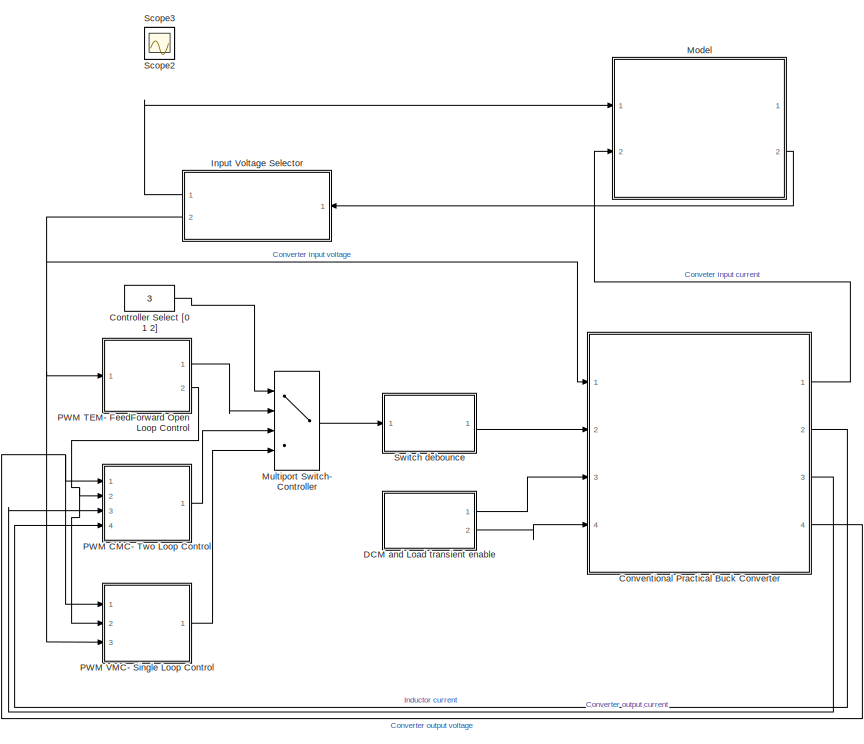
[diagram: root canvas - part 1/3, center side, full height]
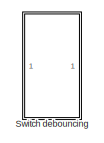
[diagram: root canvas - part 2/3, bottom right region]
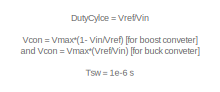
[diagram: root canvas - part 3/3, bottom left region]
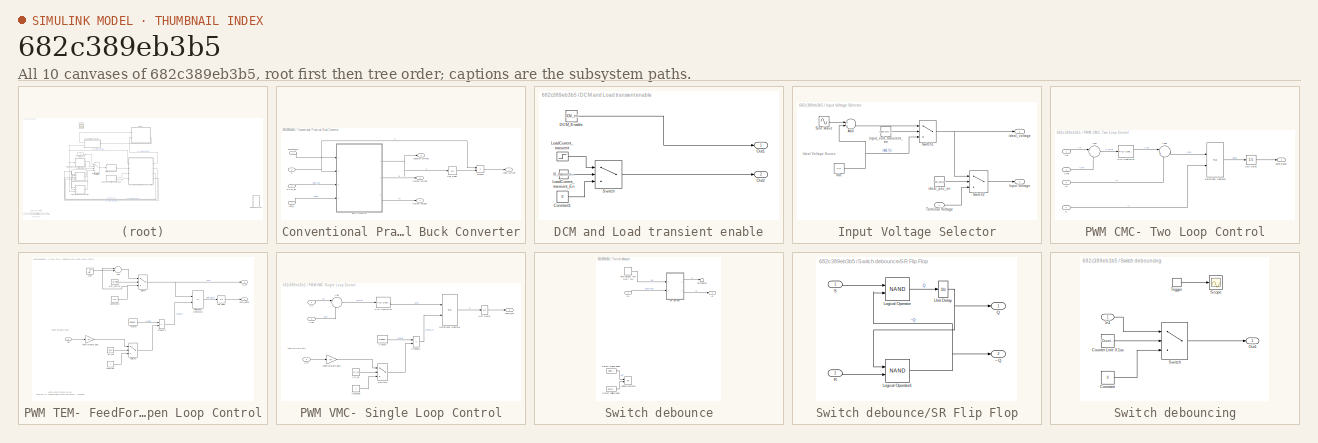
[diagram: thumbnail index - all 10 canvases of the model, root first then tree order]
MODEL slx_682c389eb3b5
KIND model
CONFIG AbsTol = auto
CONFIG EnableMultiTasking = off
CONFIG FixedStep = Ts
CONFIG InitFcn = init_practical_voltage_source;\ninit_conventional_buck_lec14;
CONFIG MaxStep = auto
CONFIG MinStep = auto
CONFIG PostLoadFcn = , if any(exist('dsrtsu_mdlpostloadfcn', 'file') == [2, 3, 6]), try dsrtsu_mdlpostloadfcn('Execute', bdroot); catch fprintf('Error in PostLoadFcn (dsrtsu_mdlpostloadfcn) for model "%s":\n %s\n', bdroot, lasterr); end, end, \ninit_practical_voltage_source;\ninit_conventional_buck_lec14;\n
CONFIG RelTol = 1e-3
CONFIG SampleTimeConstraint = Unconstrained
CONFIG Solver = FixedStepAuto
CONFIG SolverName = FixedStepAuto
CONFIG StartTime = 0.0
CONFIG StopTime = 2e-3
BLOCK [Constant] Controller Select [0 1 2]
  Value = 3
BLOCK [SubSystem] Conventional Practical Buck Converter
  Ports = [4, 4]
  RequestExecContextInheritance = off
  Variant = off
BLOCK [Inport] Conventional Practical Buck Converter/Add_iL
  IconDisplay = Port number
  Port = 4
BLOCK [ModelReference] Conventional Practical Buck Converter/Buck Converter
  ModelNameDialog = convetional_buck.slx
  ModelReferenceVersion = 1.37
  Ports = [4, 3]
  Variant = off
BLOCK [Inport] Conventional Practical Buck Converter/DCM_En
  IconDisplay = Port number
  Port = 3
BLOCK [Outport] Conventional Practical Buck Converter/Inductor current
  IconDisplay = Port number
  Port = 2
BLOCK [Outport] Conventional Practical Buck Converter/Input current
  IconDisplay = Port number
BLOCK [Outport] Conventional Practical Buck Converter/Output current
  IconDisplay = Port number
  Port = 3
BLOCK [Outport] Conventional Practical Buck Converter/Output voltage
  IconDisplay = Port number
  Port = 4
BLOCK [Product] Conventional Practical Buck Converter/Product
  InputSameDT = off
  OutDataTypeStr = Inherit: Inherit via internal rule
  Ports = [2, 1]
  RndMeth = Floor
  SaturateOnIntegerOverflow = off
BLOCK [UnitDelay] Conventional Practical Buck Converter/Unit Delay
  InputProcessing = Elements as channels (sample based)
  SampleTime = -1
BLOCK [Inport] Conventional Practical Buck Converter/practical_Vs
  IconDisplay = Port number
BLOCK [Inport] Conventional Practical Buck Converter/q
  IconDisplay = Port number
  Port = 2
BLOCK [SubSystem] DCM and Load transient enable
  Ports = [0, 2]
  RequestExecContextInheritance = off
  Variant = off
BLOCK [Constant] DCM and Load transient enable/Constant1
  Value = 0
BLOCK [Constant] DCM and Load transient enable/DCM_Enable
  OutDataTypeStr = boolean
  Value = DCM_en
BLOCK [Step] DCM and Load transient enable/LoadCurrent_transient
  After = 20
  Time = 1.0e-3
BLOCK [Constant] DCM and Load transient enable/LoadCurrent_transient_En
  OutDataTypeStr = boolean
  Value = I0_transient_en
BLOCK [Outport] DCM and Load transient enable/Out1
  IconDisplay = Port number
BLOCK [Outport] DCM and Load transient enable/Out2
  IconDisplay = Port number
  Port = 2
BLOCK [Switch] DCM and Load transient enable/Switch
  Criteria = u2 > Threshold
  InputSameDT = off
  SaturateOnIntegerOverflow = off
BLOCK [SubSystem] Input Voltage Selector
  Ports = [1, 2]
  RequestExecContextInheritance = off
  Variant = off
BLOCK [Sum] Input Voltage Selector/Add
  InputSameDT = off
  OutDataTypeStr = Inherit: Inherit via internal rule
  Ports = [2, 1]
  SaturateOnIntegerOverflow = off
BLOCK [Outport] Input Voltage Selector/Input Voltage
  IconDisplay = Port number
  Port = 2
BLOCK [Sin] Input Voltage Selector/Sine Wave
  Amplitude = 2
  Frequency = 2*pi*1e3
  Ports = [0, 1]
  SampleTime = 0
BLOCK [Switch] Input Voltage Selector/Switch1
  Criteria = u2 > Threshold
  InputSameDT = off
  SaturateOnIntegerOverflow = off
  Threshold = 0.5
BLOCK [Switch] Input Voltage Selector/Switch2
  Criteria = u2 > Threshold
  InputSameDT = off
  SaturateOnIntegerOverflow = off
  Threshold = 0.5
BLOCK [Inport] Input Voltage Selector/Terminal Voltage
  IconDisplay = Port number
BLOCK [Constant] Input Voltage Selector/Vdc
  Value = Vin
BLOCK [Constant] Input Voltage Selector/ideal_psu_en
  Value = ideal_psu_en
BLOCK [Outport] Input Voltage Selector/ideal_voltage
  IconDisplay = Port number
BLOCK [Constant] Input Voltage Selector/input_volt_transient_en
  Value = input_volt_trans_en
BLOCK [ModelReference] Model
  ModelNameDialog = practical_voltage_source.slx
  ModelReferenceVersion = 1.13
  Ports = [2, 2]
  Variant = off
BLOCK [MultiPortSwitch] Multiport Switch- Controller
  InputSameDT = off
  Ports = [4, 1]
  SaturateOnIntegerOverflow = off
BLOCK [SubSystem] PWM CMC- Two Loop Control
  Ports = [4, 1]
  RequestExecContextInheritance = off
  Variant = off
BLOCK [Sum] PWM CMC- Two Loop Control/Add
  IconShape = round
  InputSameDT = off
  Inputs = |-+
  OutDataTypeStr = Inherit: Inherit via internal rule
  Ports = [2, 1]
  SaturateOnIntegerOverflow = off
BLOCK [Sum] PWM CMC- Two Loop Control/Add1
  IconShape = round
  InputSameDT = off
  Inputs = |++
  OutDataTypeStr = Inherit: Inherit via internal rule
  Ports = [2, 1]
  SaturateOnIntegerOverflow = off
BLOCK [Inport] PWM CMC- Two Loop Control/I0
  IconDisplay = Port number
  Port = 3
BLOCK [Inport] PWM CMC- Two Loop Control/IL
  IconDisplay = Port number
  Port = 4
BLOCK [Reference] PWM CMC- Two Loop Control/PID Controller  REF=simulink/Continuous/PID Controller
  Ports = [1, 1]
  SourceBlock = simulink/Continuous/PID Controller
  SourceProductBaseCode = SL
  SourceProductName = Simulink
  SourceType = PID 1dof
BLOCK [RelationalOperator] PWM CMC- Two Loop Control/Relational Operator
  InputSameDT = off
  Operator = <=
  OutDataTypeStr = boolean
  Ports = [2, 1]
  RndMeth = Simplest
BLOCK [UnitDelay] PWM CMC- Two Loop Control/Unit Delay
  InputProcessing = Elements as channels (sample based)
  SampleTime = -1
BLOCK [Inport] PWM CMC- Two Loop Control/V0
  IconDisplay = Port number
BLOCK [Inport] PWM CMC- Two Loop Control/Vref
  IconDisplay = Port number
  Port = 2
BLOCK [Outport] PWM CMC- Two Loop Control/gate_signal
  IconDisplay = Port number
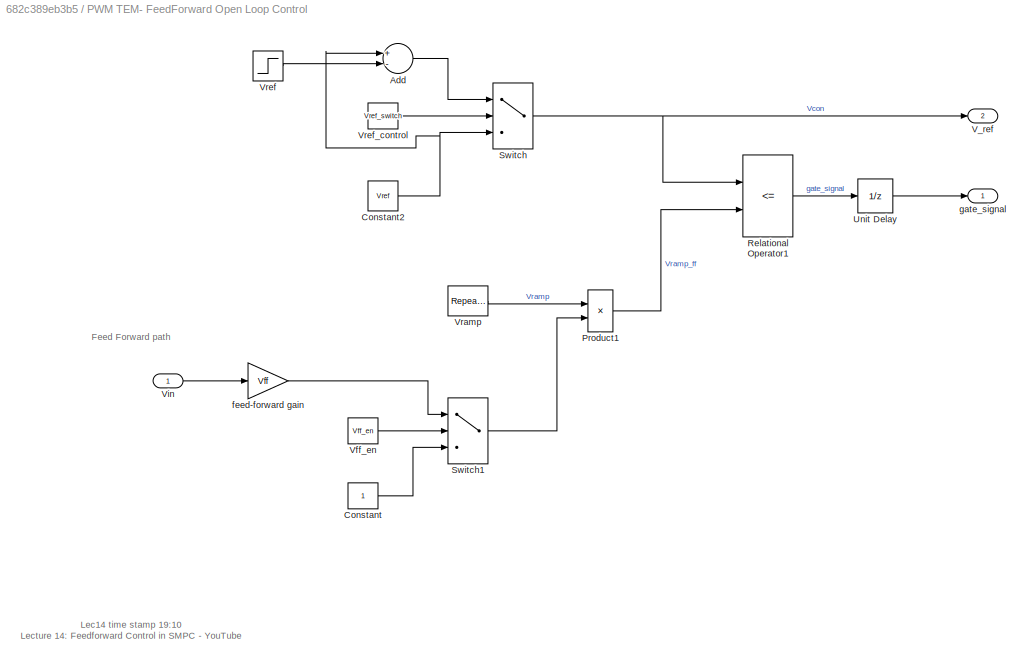
BLOCK [SubSystem] PWM TEM- FeedForward Open Loop Control
  Ports = [1, 2]
  RequestExecContextInheritance = off
  Variant = off
BLOCK [Sum] PWM TEM- FeedForward Open Loop Control/Add
  InputSameDT = off
  Inputs = +-
  OutDataTypeStr = Inherit: Inherit via internal rule
  Ports = [2, 1]
  SaturateOnIntegerOverflow = off
BLOCK [Constant] PWM TEM- FeedForward Open Loop Control/Constant
BLOCK [Constant] PWM TEM- FeedForward Open Loop Control/Constant2
  Value = Vref
BLOCK [Product] PWM TEM- FeedForward Open Loop Control/Product1
  InputSameDT = off
  OutDataTypeStr = Inherit: Inherit via internal rule
  Ports = [2, 1]
  RndMeth = Floor
  SaturateOnIntegerOverflow = off
BLOCK [RelationalOperator] PWM TEM- FeedForward Open Loop Control/Relational Operator1
  InputSameDT = off
  Operator = <=
  OutDataTypeStr = boolean
  Ports = [2, 1]
  RndMeth = Simplest
BLOCK [Switch] PWM TEM- FeedForward Open Loop Control/Switch
  Criteria = u2 > Threshold
  InputSameDT = off
  SaturateOnIntegerOverflow = off
BLOCK [Switch] PWM TEM- FeedForward Open Loop Control/Switch1
  Criteria = u2 > Threshold
  InputSameDT = off
  SaturateOnIntegerOverflow = off
BLOCK [UnitDelay] PWM TEM- FeedForward Open Loop Control/Unit Delay
  InputProcessing = Elements as channels (sample based)
  SampleTime = -1
BLOCK [Outport] PWM TEM- FeedForward Open Loop Control/V_ref
  IconDisplay = Port number
  Port = 2
BLOCK [Constant] PWM TEM- FeedForward Open Loop Control/Vff_en
  Value = Vff_en
BLOCK [Inport] PWM TEM- FeedForward Open Loop Control/Vin
  IconDisplay = Port number
BLOCK [Reference] PWM TEM- FeedForward Open Loop Control/Vramp  REF=simulink/Sources/Repeating
Sequence
  Ports = [0, 1]
  SourceBlock = simulink/Sources/Repeating\nSequence
  SourceProductBaseCode = SL
  SourceProductName = Simulink
  SourceType = Repeating table
BLOCK [Step] PWM TEM- FeedForward Open Loop Control/Vref
  After = 0.5
  Time = 1.25e-3
BLOCK [Constant] PWM TEM- FeedForward Open Loop Control/Vref_control
  Value = Vref_switch
BLOCK [Gain] PWM TEM- FeedForward Open Loop Control/feed-forward gain
  Gain = Vff
  OutDataTypeStr = Inherit: Inherit via internal rule
  ParamDataTypeStr = Inherit: Inherit via internal rule
  SaturateOnIntegerOverflow = off
BLOCK [Outport] PWM TEM- FeedForward Open Loop Control/gate_signal
  IconDisplay = Port number
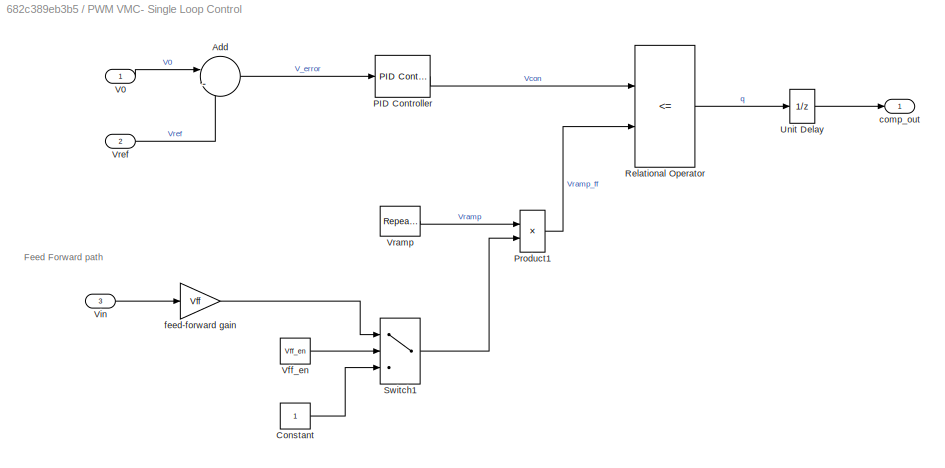
BLOCK [SubSystem] PWM VMC- Single Loop Control
  Ports = [3, 1]
  RequestExecContextInheritance = off
  Variant = off
BLOCK [Sum] PWM VMC- Single Loop Control/Add
  IconShape = round
  InputSameDT = off
  Inputs = |-+
  OutDataTypeStr = Inherit: Inherit via internal rule
  Ports = [2, 1]
  SaturateOnIntegerOverflow = off
BLOCK [Constant] PWM VMC- Single Loop Control/Constant
BLOCK [Reference] PWM VMC- Single Loop Control/PID Controller  REF=simulink/Continuous/PID Controller
  Ports = [1, 1]
  SourceBlock = simulink/Continuous/PID Controller
  SourceProductBaseCode = SL
  SourceProductName = Simulink
  SourceType = PID 1dof
BLOCK [Product] PWM VMC- Single Loop Control/Product1
  InputSameDT = off
  OutDataTypeStr = Inherit: Inherit via internal rule
  Ports = [2, 1]
  RndMeth = Floor
  SaturateOnIntegerOverflow = off
BLOCK [RelationalOperator] PWM VMC- Single Loop Control/Relational Operator
  InputSameDT = off
  Operator = <=
  OutDataTypeStr = boolean
  Ports = [2, 1]
  RndMeth = Simplest
BLOCK [Switch] PWM VMC- Single Loop Control/Switch1
  Criteria = u2 > Threshold
  InputSameDT = off
  SaturateOnIntegerOverflow = off
BLOCK [UnitDelay] PWM VMC- Single Loop Control/Unit Delay
  InputProcessing = Elements as channels (sample based)
  SampleTime = -1
BLOCK [Inport] PWM VMC- Single Loop Control/V0
  IconDisplay = Port number
BLOCK [Constant] PWM VMC- Single Loop Control/Vff_en
  Value = Vff_en
BLOCK [Inport] PWM VMC- Single Loop Control/Vin
  IconDisplay = Port number
  Port = 3
BLOCK [Reference] PWM VMC- Single Loop Control/Vramp  REF=simulink/Sources/Repeating
Sequence
  Ports = [0, 1]
  SourceBlock = simulink/Sources/Repeating\nSequence
  SourceProductBaseCode = SL
  SourceProductName = Simulink
  SourceType = Repeating table
BLOCK [Inport] PWM VMC- Single Loop Control/Vref
  IconDisplay = Port number
  Port = 2
BLOCK [Outport] PWM VMC- Single Loop Control/comp_out
  IconDisplay = Port number
BLOCK [Gain] PWM VMC- Single Loop Control/feed-forward gain
  Gain = Vff
  OutDataTypeStr = Inherit: Inherit via internal rule
  ParamDataTypeStr = Inherit: Inherit via internal rule
  SaturateOnIntegerOverflow = off
BLOCK [Scope] Scope2
  IOType = viewer
  NumInputPorts = 1
  Ports = []
  ScopeSpecificationString = Simulink.scopes.TimeScopeBlockCfg('CurrentConfiguration', extmgr.ConfigurationSet(extmgr.Configuration('Core','General UI',true),extmgr.Configuration('Core','Source UI',true),extmgr.Configuration('Sources','WiredSimulink',true,'DataLoggingVariableName','ScopeData1'),extmgr.Configuration('Visuals','Time Domain',true,'SerializedDisplays',{struct('MinYLimReal','-0.125','MaxYLimReal','1.125','YLabelRe...<+1482ch>
BLOCK [Scope] Scope3
  IOType = viewer
  NumInputPorts = 1
  Ports = []
  ScopeSpecificationString = Simulink.scopes.TimeScopeBlockCfg('CurrentConfiguration', extmgr.ConfigurationSet(extmgr.Configuration('Core','General UI',true),extmgr.Configuration('Core','Source UI',true),extmgr.Configuration('Sources','WiredSimulink',true,'DataLoggingVariableName','ScopeData2'),extmgr.Configuration('Visuals','Time Domain',true,'SerializedDisplays',{struct('MinYLimReal','-5.75','MaxYLimReal','51.75','YLabelRea...<+1775ch>
BLOCK [SubSystem] Switch debounce
  Ports = [1, 1]
  RequestExecContextInheritance = off
  Variant = off
BLOCK [Reference] Switch debounce/Detect Falling enge  REF=simulink/Logic and Bit
Operations/Detect
Decrease
  Commented = on
  Ports = [1, 1]
  SourceBlock = simulink/Logic and Bit\nOperations/Detect\nDecrease
  SourceProductBaseCode = SL
  SourceProductName = Simulink
  SourceType = Detect Decrease
BLOCK [Reference] Switch debounce/Detect Rising edge  REF=simulink/Logic and Bit
Operations/Detect
Increase
  Commented = on
  Ports = [1, 1]
  SourceBlock = simulink/Logic and Bit\nOperations/Detect\nIncrease
  SourceProductBaseCode = SL
  SourceProductName = Simulink
  SourceType = Detect Increase
BLOCK [Inport] Switch debounce/In1
  IconDisplay = Port number
BLOCK [Logic] Switch debounce/Logical Operator
  AllPortsSameDT = off
  Commented = on
  IconShape = distinctive
  Operator = OR
  OutDataTypeStr = boolean
  Ports = [2, 1]
BLOCK [SubSystem] Switch debounce/SR Flip Flop
  Ports = [2, 2]
  RequestExecContextInheritance = off
  Variant = off
BLOCK [Logic] Switch debounce/SR Flip Flop/Logical Operator
  AllPortsSameDT = off
  IconShape = distinctive
  Operator = NAND
  OutDataTypeStr = boolean
  Ports = [2, 1]
BLOCK [Logic] Switch debounce/SR Flip Flop/Logical Operator1
  AllPortsSameDT = off
  IconShape = distinctive
  Operator = NAND
  OutDataTypeStr = boolean
  Ports = [2, 1]
BLOCK [Outport] Switch debounce/SR Flip Flop/Q
  IconDisplay = Port number
BLOCK [Inport] Switch debounce/SR Flip Flop/R
  IconDisplay = Port number
  Port = 2
BLOCK [Inport] Switch debounce/SR Flip Flop/S
  IconDisplay = Port number
BLOCK [UnitDelay] Switch debounce/SR Flip Flop/Unit Delay
  InputProcessing = Elements as channels (sample based)
  SampleTime = -1
BLOCK [Outport] Switch debounce/SR Flip Flop/~Q
  IconDisplay = Port number
  Port = 2
BLOCK [Terminator] Switch debounce/Terminator
BLOCK [DiscretePulseGenerator] Switch debounce/Time period: Tsw Duty: 5%
  Period = Tsw
  Ports = [0, 1]
  PulseType = Time based
  PulseWidth = 5
BLOCK [Outport] Switch debounce/~q
  IconDisplay = Port number
BLOCK [SubSystem] Switch debouncing
  Commented = on
  Ports = [1, 1, 0, 1]
  RequestExecContextInheritance = off
  TreatAsAtomicUnit = on
  Variant = off
BLOCK [Constant] Switch debouncing/Constant
  Value = 0
BLOCK [Reference] Switch debouncing/Counter Linit: 0.1us  REF=simulink/Sources/Counter
Limited
  Ports = [0, 1]
  SourceBlock = simulink/Sources/Counter\nLimited
  SourceProductBaseCode = SL
  SourceProductName = Simulink
  SourceType = Counter Limited
BLOCK [Inport] Switch debouncing/In1
  IconDisplay = Port number
BLOCK [Outport] Switch debouncing/Out1
  IconDisplay = Port number
BLOCK [Scope] Switch debouncing/Scope
  NumInputPorts = 1
  Ports = [1]
  ScopeSpecificationString = Simulink.scopes.TimeScopeBlockCfg('CurrentConfiguration', extmgr.ConfigurationSet(extmgr.Configuration('Core','General UI',true),extmgr.Configuration('Core','Source UI',true),extmgr.Configuration('Sources','WiredSimulink',true,'DataLoggingVariableName','ScopeData4'),extmgr.Configuration('Visuals','Time Domain',true,'SerializedDisplays',{struct('MinYLimReal','0.9','MaxYLimReal','1.1','YLabelReal','...<+1357ch>
BLOCK [Switch] Switch debouncing/Switch
  InputSameDT = off
  SaturateOnIntegerOverflow = off
  Threshold = (0.45e-6/Ts) + 1
BLOCK [TriggerPort] Switch debouncing/Trigger
  PortDimensions = 1
  Ports = [0, 1]
  ShowOutputPort = on
  StatesWhenEnabling = held
  VariantControl = Variant
ANNOTATION (root): DutyCylce = Vref/Vin Vcon = Vmax*(1- Vin/Vref) [for boost conveter] and Vcon = Vmax*(Vref/Vin) [for buck conveter] Tsw = 1e-6 s Vref starts with 3.3V and after 1ms, it is set to 2.3V. DutyCycle shall be adapted accordingly and coverter states can be observed. Ideal voltage source is replaced by practical voltage source to aacout for psu output impedance (i.e. output resistance and finit bandwidt) ...<+125ch>
ANNOTATION Input Voltage Selector: Ideal Voltage Source
ANNOTATION PWM TEM- FeedForward Open Loop Control: Lec14 time stamp 19:10 Lecture 14: Feedforward Control in SMPC - YouTube
ANNOTATION PWM TEM- FeedForward Open Loop Control: Feed Forward path
ANNOTATION PWM VMC- Single Loop Control: Feed Forward path
LINE Controller Select [0 1 2]:1 -> Multiport Switch- Controller:1
LINE Conventional Practical Buck Converter/Add_iL:1 -> Conventional Practical Buck Converter/Buck Converter:4
NET Conventional Practical Buck Converter/Buck Converter:1 -> Conventional Practical Buck Converter/Inductor current:1, Conventional Practical Buck Converter/Unit Delay:1
LINE Conventional Practical Buck Converter/Buck Converter:2 -> Conventional Practical Buck Converter/Output current:1
LINE Conventional Practical Buck Converter/Buck Converter:3 -> Conventional Practical Buck Converter/Output voltage:1
LINE Conventional Practical Buck Converter/DCM_En:1 -> Conventional Practical Buck Converter/Buck Converter:3
LINE Conventional Practical Buck Converter/Product:1 -> Conventional Practical Buck Converter/Input current:1
LINE Conventional Practical Buck Converter/Unit Delay:1 -> Conventional Practical Buck Converter/Product:2
LINE Conventional Practical Buck Converter/practical_Vs:1 -> Conventional Practical Buck Converter/Buck Converter:1
NET Conventional Practical Buck Converter/q:1 -> Conventional Practical Buck Converter/Buck Converter:2, Conventional Practical Buck Converter/Product:1
LINE Conventional Practical Buck Converter:1 -> Model:2
LINE Conventional Practical Buck Converter:2 -> PWM CMC- Two Loop Control:4
LINE Conventional Practical Buck Converter:3 -> PWM CMC- Two Loop Control:3
NET Conventional Practical Buck Converter:4 -> PWM CMC- Two Loop Control:1, PWM VMC- Single Loop Control:1
LINE DCM and Load transient enable/Constant1:1 -> DCM and Load transient enable/Switch:3
LINE DCM and Load transient enable/DCM_Enable:1 -> DCM and Load transient enable/Out1:1
LINE DCM and Load transient enable/LoadCurrent_transient:1 -> DCM and Load transient enable/Switch:1
LINE DCM and Load transient enable/LoadCurrent_transient_En:1 -> DCM and Load transient enable/Switch:2
LINE DCM and Load transient enable/Switch:1 -> DCM and Load transient enable/Out2:1
LINE DCM and Load transient enable:1 -> Conventional Practical Buck Converter:3
LINE DCM and Load transient enable:2 -> Conventional Practical Buck Converter:4
LINE Input Voltage Selector/Add:1 -> Input Voltage Selector/Switch1:1
LINE Input Voltage Selector/Sine Wave:1 -> Input Voltage Selector/Add:1
NET Input Voltage Selector/Switch1:1 -> Input Voltage Selector/Switch2:1, Input Voltage Selector/ideal_voltage:1
LINE Input Voltage Selector/Switch2:1 -> Input Voltage Selector/Input Voltage:1
LINE Input Voltage Selector/Terminal Voltage:1 -> Input Voltage Selector/Switch2:3
NET Input Voltage Selector/Vdc:1 -> Input Voltage Selector/Add:2, Input Voltage Selector/Switch1:3
LINE Input Voltage Selector/ideal_psu_en:1 -> Input Voltage Selector/Switch2:2
LINE Input Voltage Selector/input_volt_transient_en:1 -> Input Voltage Selector/Switch1:2
LINE Input Voltage Selector:1 -> Model:1
NET Input Voltage Selector:2 -> Conventional Practical Buck Converter:1, PWM TEM- FeedForward Open Loop Control:1, PWM VMC- Single Loop Control:3
LINE Model:2 -> Input Voltage Selector:1
LINE Multiport Switch- Controller:1 -> Switch debounce:1
LINE PWM CMC- Two Loop Control/Add1:1 -> PWM CMC- Two Loop Control/Relational Operator:1
LINE PWM CMC- Two Loop Control/Add:1 -> PWM CMC- Two Loop Control/PID Controller:1
LINE PWM CMC- Two Loop Control/I0:1 -> PWM CMC- Two Loop Control/Add1:2
LINE PWM CMC- Two Loop Control/IL:1 -> PWM CMC- Two Loop Control/Relational Operator:2
LINE PWM CMC- Two Loop Control/PID Controller:1 -> PWM CMC- Two Loop Control/Add1:1
LINE PWM CMC- Two Loop Control/Relational Operator:1 -> PWM CMC- Two Loop Control/Unit Delay:1
LINE PWM CMC- Two Loop Control/Unit Delay:1 -> PWM CMC- Two Loop Control/gate_signal:1
LINE PWM CMC- Two Loop Control/V0:1 -> PWM CMC- Two Loop Control/Add:1
LINE PWM CMC- Two Loop Control/Vref:1 -> PWM CMC- Two Loop Control/Add:2
LINE PWM CMC- Two Loop Control:1 -> Multiport Switch- Controller:3
LINE PWM TEM- FeedForward Open Loop Control/Add:1 -> PWM TEM- FeedForward Open Loop Control/Switch:1
NET PWM TEM- FeedForward Open Loop Control/Constant2:1 -> PWM TEM- FeedForward Open Loop Control/Add:1, PWM TEM- FeedForward Open Loop Control/Switch:3
LINE PWM TEM- FeedForward Open Loop Control/Constant:1 -> PWM TEM- FeedForward Open Loop Control/Switch1:3
LINE PWM TEM- FeedForward Open Loop Control/Product1:1 -> PWM TEM- FeedForward Open Loop Control/Relational Operator1:2
LINE PWM TEM- FeedForward Open Loop Control/Relational Operator1:1 -> PWM TEM- FeedForward Open Loop Control/Unit Delay:1
LINE PWM TEM- FeedForward Open Loop Control/Switch1:1 -> PWM TEM- FeedForward Open Loop Control/Product1:2
NET PWM TEM- FeedForward Open Loop Control/Switch:1 -> PWM TEM- FeedForward Open Loop Control/Relational Operator1:1, PWM TEM- FeedForward Open Loop Control/V_ref:1
LINE PWM TEM- FeedForward Open Loop Control/Unit Delay:1 -> PWM TEM- FeedForward Open Loop Control/gate_signal:1
LINE PWM TEM- FeedForward Open Loop Control/Vff_en:1 -> PWM TEM- FeedForward Open Loop Control/Switch1:2
LINE PWM TEM- FeedForward Open Loop Control/Vin:1 -> PWM TEM- FeedForward Open Loop Control/feed-forward gain:1
LINE PWM TEM- FeedForward Open Loop Control/Vramp:1 -> PWM TEM- FeedForward Open Loop Control/Product1:1
LINE PWM TEM- FeedForward Open Loop Control/Vref:1 -> PWM TEM- FeedForward Open Loop Control/Add:2
LINE PWM TEM- FeedForward Open Loop Control/Vref_control:1 -> PWM TEM- FeedForward Open Loop Control/Switch:2
LINE PWM TEM- FeedForward Open Loop Control/feed-forward gain:1 -> PWM TEM- FeedForward Open Loop Control/Switch1:1
LINE PWM TEM- FeedForward Open Loop Control:1 -> Multiport Switch- Controller:2
NET PWM TEM- FeedForward Open Loop Control:2 -> PWM CMC- Two Loop Control:2, PWM VMC- Single Loop Control:2
LINE PWM VMC- Single Loop Control/Add:1 -> PWM VMC- Single Loop Control/PID Controller:1
LINE PWM VMC- Single Loop Control/Constant:1 -> PWM VMC- Single Loop Control/Switch1:3
LINE PWM VMC- Single Loop Control/PID Controller:1 -> PWM VMC- Single Loop Control/Relational Operator:1
LINE PWM VMC- Single Loop Control/Product1:1 -> PWM VMC- Single Loop Control/Relational Operator:2
LINE PWM VMC- Single Loop Control/Relational Operator:1 -> PWM VMC- Single Loop Control/Unit Delay:1
LINE PWM VMC- Single Loop Control/Switch1:1 -> PWM VMC- Single Loop Control/Product1:2
LINE PWM VMC- Single Loop Control/Unit Delay:1 -> PWM VMC- Single Loop Control/comp_out:1
LINE PWM VMC- Single Loop Control/V0:1 -> PWM VMC- Single Loop Control/Add:1
LINE PWM VMC- Single Loop Control/Vff_en:1 -> PWM VMC- Single Loop Control/Switch1:2
LINE PWM VMC- Single Loop Control/Vin:1 -> PWM VMC- Single Loop Control/feed-forward gain:1
LINE PWM VMC- Single Loop Control/Vramp:1 -> PWM VMC- Single Loop Control/Product1:1
LINE PWM VMC- Single Loop Control/Vref:1 -> PWM VMC- Single Loop Control/Add:2
LINE PWM VMC- Single Loop Control/feed-forward gain:1 -> PWM VMC- Single Loop Control/Switch1:1
LINE PWM VMC- Single Loop Control:1 -> Multiport Switch- Controller:4
LINE Switch debounce/Detect Falling enge:1 -> Switch debounce/Logical Operator:2
LINE Switch debounce/Detect Rising edge:1 -> Switch debounce/Logical Operator:1
LINE Switch debounce/In1:1 -> Switch debounce/SR Flip Flop:2
NET Switch debounce/SR Flip Flop/Logical Operator1:1 -> Switch debounce/SR Flip Flop/Logical Operator:2, Switch debounce/SR Flip Flop/~Q:1
LINE Switch debounce/SR Flip Flop/Logical Operator:1 -> Switch debounce/SR Flip Flop/Unit Delay:1
LINE Switch debounce/SR Flip Flop/R:1 -> Switch debounce/SR Flip Flop/Logical Operator1:2
LINE Switch debounce/SR Flip Flop/S:1 -> Switch debounce/SR Flip Flop/Logical Operator:1
NET Switch debounce/SR Flip Flop/Unit Delay:1 -> Switch debounce/SR Flip Flop/Logical Operator1:1, Switch debounce/SR Flip Flop/Q:1
LINE Switch debounce/SR Flip Flop:1 -> Switch debounce/Terminator:1
LINE Switch debounce/SR Flip Flop:2 -> Switch debounce/~q:1
LINE Switch debounce/Time period: Tsw Duty: 5%:1 -> Switch debounce/SR Flip Flop:1
LINE Switch debounce:1 -> Conventional Practical Buck Converter:2
LINE Switch debouncing/Constant:1 -> Switch debouncing/Switch:3
LINE Switch debouncing/Counter Linit: 0.1us:1 -> Switch debouncing/Switch:2
LINE Switch debouncing/In1:1 -> Switch debouncing/Switch:1
LINE Switch debouncing/Switch:1 -> Switch debouncing/Out1:1
LINE Switch debouncing/Trigger:1 -> Switch debouncing/Scope:1
note: NET lines group one-source signal fan-out (src -> all destinations, sorted); 1:1 wires keep LINE
